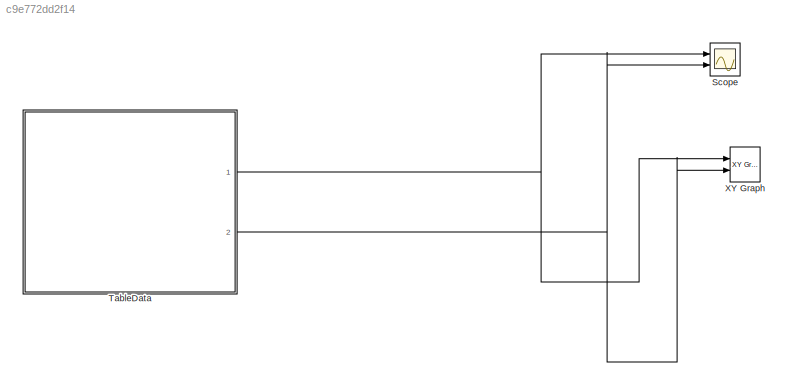
MODEL slx_c9e772dd2f14
KIND model
CONFIG AbsTol = auto
CONFIG EnableMultiTasking = on
CONFIG FixedStep = auto
CONFIG InitFcn = simin.time = [];\nsimin.signals.values = [10:5:90]';
CONFIG MaxStep = auto
CONFIG MinStep = auto
CONFIG RelTol = 1e-3
CONFIG SampleTimeConstraint = Unconstrained
CONFIG Solver = FixedStepAuto
CONFIG SolverName = FixedStepAuto
CONFIG StartTime = 0.0
CONFIG StopTime = 200
BLOCK [Scope] Scope
  Floating = off
  NumInputPorts = 2
  Ports = [2]
  ScopeSpecificationString = Simulink.scopes.TimeScopeBlockCfg('CurrentConfiguration', extmgr.ConfigurationSet(extmgr.Configuration('Core','General UI',true),extmgr.Configuration('Core','Source UI',true),extmgr.Configuration('Sources','WiredSimulink',true),extmgr.Configuration('Visuals','Time Domain',true,'SerializedDisplays',{struct('MinYLimReal','-2.62379','MaxYLimReal','1.39407','YLabelReal','','MinYLimMag','0.00000','MaxY...<+1992ch>
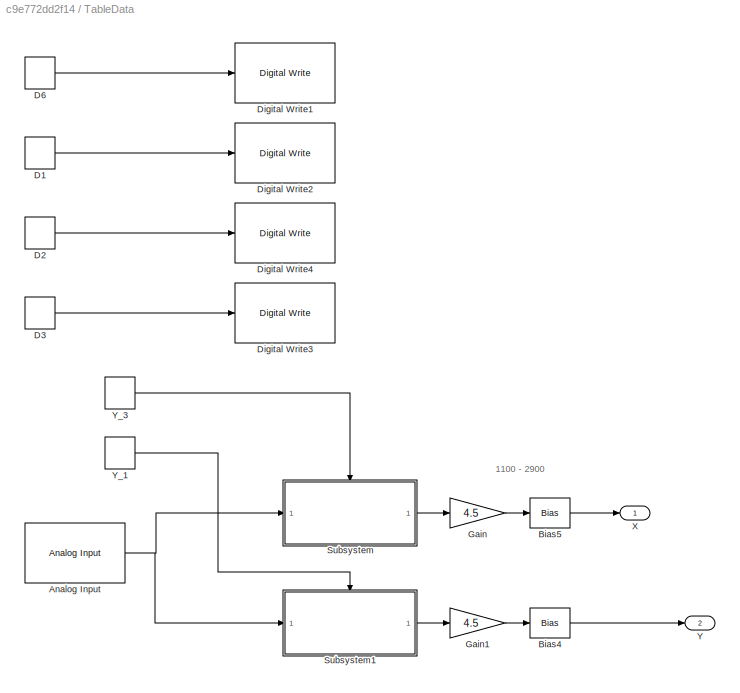
BLOCK [SubSystem] TableData
  Ports = [0, 2]
  RequestExecContextInheritance = off
BLOCK [Reference] TableData/Analog Input  REF=mbedblockslib/Analog Input
  Ports = [0, 1]
  SourceBlock = mbedblockslib/Analog Input
  SourceProductBaseCode = MICROBIT
  SourceProductName = Simulink Coder Support Package for BBC microbit Board
  SourceType = mbed.AnalogInput
BLOCK [Bias] TableData/Bias4
  Bias = -2.222
  SaturateOnIntegerOverflow = off
BLOCK [Bias] TableData/Bias5
  Bias = -2.222
  SaturateOnIntegerOverflow = off
BLOCK [DiscretePulseGenerator] TableData/D1
  Period = 1000*10^(-6)
  Ports = [0, 1]
  PulseType = Time based
  PulseWidth = 50
BLOCK [DiscretePulseGenerator] TableData/D2
  Period = 1000*10^(-6)
  PhaseDelay = 500*10^(-6)
  Ports = [0, 1]
  PulseType = Time based
  PulseWidth = 50
BLOCK [DiscretePulseGenerator] TableData/D3
  Period = 1000*10^(-6)
  PhaseDelay = -250*10^(-6)
  Ports = [0, 1]
  PulseType = Time based
  PulseWidth = 50
BLOCK [DiscretePulseGenerator] TableData/D6
  Period = 1000*10^(-6)
  PhaseDelay = 250*10^(-6)
  Ports = [0, 1]
  PulseType = Time based
  PulseWidth = 50
BLOCK [Reference] TableData/Digital Write1  REF=mbedblockslib/Digital Write
  Ports = [1]
  SourceBlock = mbedblockslib/Digital Write
  SourceProductBaseCode = MICROBIT
  SourceProductName = Simulink Coder Support Package for BBC microbit Board
  SourceType = mbed.DigitalWrite
BLOCK [Reference] TableData/Digital Write2  REF=mbedblockslib/Digital Write
  Ports = [1]
  SourceBlock = mbedblockslib/Digital Write
  SourceProductBaseCode = MICROBIT
  SourceProductName = Simulink Coder Support Package for BBC microbit Board
  SourceType = mbed.DigitalWrite
BLOCK [Reference] TableData/Digital Write3  REF=mbedblockslib/Digital Write
  Ports = [1]
  SourceBlock = mbedblockslib/Digital Write
  SourceProductBaseCode = MICROBIT
  SourceProductName = Simulink Coder Support Package for BBC microbit Board
  SourceType = mbed.DigitalWrite
BLOCK [Reference] TableData/Digital Write4  REF=mbedblockslib/Digital Write
  Ports = [1]
  SourceBlock = mbedblockslib/Digital Write
  SourceProductBaseCode = MICROBIT
  SourceProductName = Simulink Coder Support Package for BBC microbit Board
  SourceType = mbed.DigitalWrite
BLOCK [Gain] TableData/Gain
  Gain = 4.5
  OutDataTypeStr = Inherit: Inherit via internal rule
  ParamDataTypeStr = Inherit: Inherit via internal rule
  SaturateOnIntegerOverflow = off
BLOCK [Gain] TableData/Gain1
  Gain = 4.5
  OutDataTypeStr = Inherit: Inherit via internal rule
  ParamDataTypeStr = Inherit: Inherit via internal rule
  SaturateOnIntegerOverflow = off
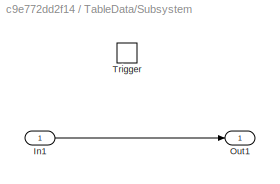
BLOCK [SubSystem] TableData/Subsystem
  Ports = [1, 1, 0, 1]
  RequestExecContextInheritance = off
BLOCK [Inport] TableData/Subsystem/In1
  IconDisplay = Port number
BLOCK [Outport] TableData/Subsystem/Out1
  IconDisplay = Port number
BLOCK [TriggerPort] TableData/Subsystem/Trigger
  PortDimensions = 1
  Ports = []
  StatesWhenEnabling = held
  VariantControl = Variant
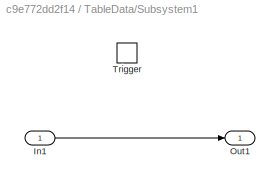
BLOCK [SubSystem] TableData/Subsystem1
  Ports = [1, 1, 0, 1]
  RequestExecContextInheritance = off
BLOCK [Inport] TableData/Subsystem1/In1
  IconDisplay = Port number
BLOCK [Outport] TableData/Subsystem1/Out1
  IconDisplay = Port number
BLOCK [TriggerPort] TableData/Subsystem1/Trigger
  PortDimensions = 1
  Ports = []
  StatesWhenEnabling = held
  VariantControl = Variant
BLOCK [Outport] TableData/X
  IconDisplay = Port number
BLOCK [Outport] TableData/Y
  IconDisplay = Port number
  Port = 2
BLOCK [DiscretePulseGenerator] TableData/Y_1
  Period = 1000*10^(-6)
  PhaseDelay = 450*10^(-6)
  Ports = [0, 1]
  PulseType = Time based
BLOCK [DiscretePulseGenerator] TableData/Y_3
  Period = 1000*10^(-6)
  PhaseDelay = 200*10^(-6)
  Ports = [0, 1]
  PulseType = Time based
BLOCK [Reference] XY Graph  REF=simulink/Sinks/XY Graph
  Commented = on
  Ports = [2]
  SourceBlock = simulink/Sinks/XY Graph
  SourceProductBaseCode = SL
  SourceProductName = Simulink
  SourceType = XY scope.
ANNOTATION TableData: 1100 - 2900
NET TableData/Analog Input:1 -> TableData/Subsystem1:1, TableData/Subsystem:1
LINE TableData/Bias4:1 -> TableData/Y:1
LINE TableData/Bias5:1 -> TableData/X:1
LINE TableData/D1:1 -> TableData/Digital Write2:1
LINE TableData/D2:1 -> TableData/Digital Write4:1
LINE TableData/D3:1 -> TableData/Digital Write3:1
LINE TableData/D6:1 -> TableData/Digital Write1:1
LINE TableData/Gain1:1 -> TableData/Bias4:1
LINE TableData/Gain:1 -> TableData/Bias5:1
LINE TableData/Subsystem/In1:1 -> TableData/Subsystem/Out1:1
LINE TableData/Subsystem1/In1:1 -> TableData/Subsystem1/Out1:1
LINE TableData/Subsystem1:1 -> TableData/Gain1:1
LINE TableData/Subsystem:1 -> TableData/Gain:1
LINE TableData/Y_1:1 -> TableData/Subsystem1:trigger
LINE TableData/Y_3:1 -> TableData/Subsystem:trigger
NET TableData:1 -> Scope:1, XY Graph:1
NET TableData:2 -> Scope:2, XY Graph:2
note: NET lines group one-source signal fan-out (src -> all destinations, sorted); 1:1 wires keep LINE
